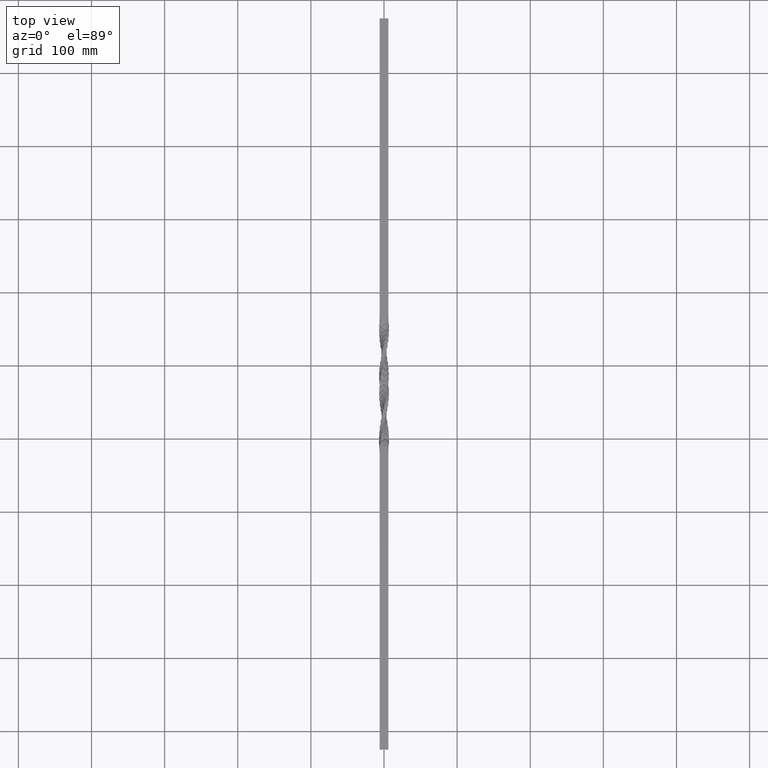
[diagram: clean part render]
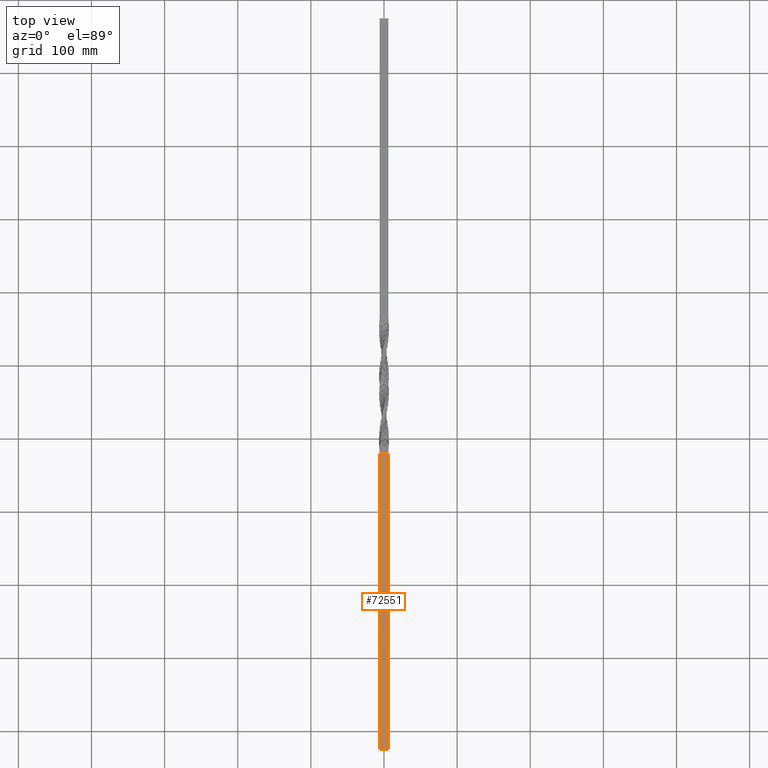
[diagram: same view with one face highlighted and labeled with its STEP entity id]
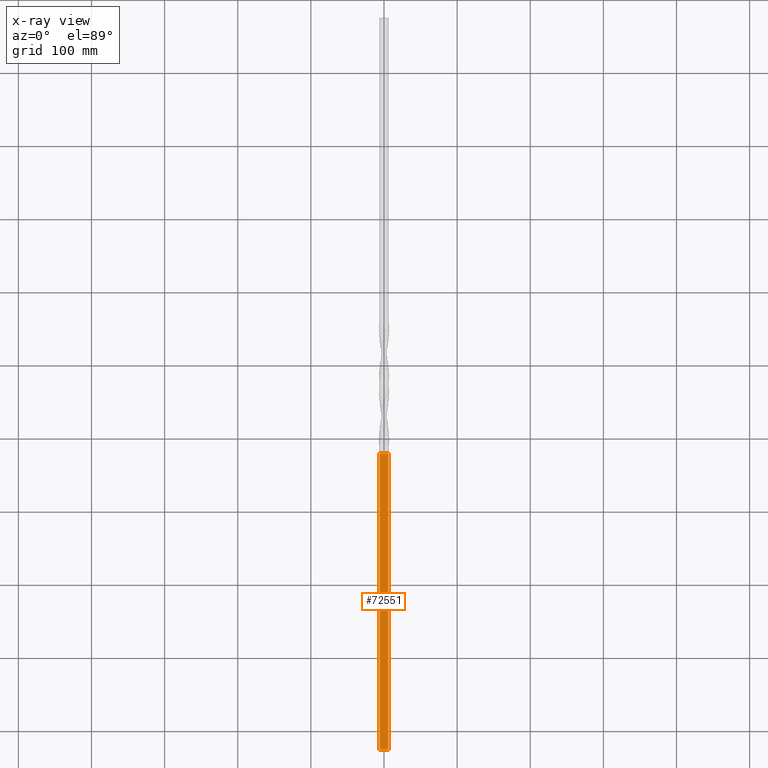
[diagram: x-ray of the same camera — body ghosted, the highlighted face saturated]
A machine part, top view. The second image highlights one B-rep face of the part: STEP entity #72551.
The next image is the same camera in x-ray: the body ghosted, the highlighted face saturated — about 0% of this face is hidden behind the body in this view.
In plain terms, the highlighted planar face has unit normal (0, 0, -1).
Its self-contained STEP definition (entity closure, byte-faithful):
#369 = VERTEX_POINT ( 'NONE', #24973 ) ;
#2434 = CARTESIAN_POINT ( 'NONE',  ( -5.999999999999999112, -425.0000000000000568, 6.000000000000000888 ) ) ;
#4704 = VECTOR ( 'NONE', #49043, 1000.000000000000000 ) ;
#4718 = VERTEX_POINT ( 'NONE', #26714 ) ;
#5309 = CARTESIAN_POINT ( 'NONE',  ( -5.999999999999999112, -425.0000000000000568, 6.000000000000000888 ) ) ;
#6097 = DIRECTION ( 'NONE',  ( -1.000000000000000000, -0.000000000000000000, -1.445602896647339163E-16 ) ) ;
#11058 = EDGE_LOOP ( 'NONE', ( #80606, #22583, #58504, #17174, #70306, #34019 ) ) ;
#11861 = FACE_OUTER_BOUND ( 'NONE', #11058, .T. ) ;
#13582 = VERTEX_POINT ( 'NONE', #61309 ) ;
#14112 = CARTESIAN_POINT ( 'NONE',  ( -5.999999999999999112, -425.0000000000000568, 6.000000000000000888 ) ) ;
#16163 = CARTESIAN_POINT ( 'NONE',  ( 5.999999999999997335, -20.00000000000000000, 5.999999999999999112 ) ) ;
#16790 = CARTESIAN_POINT ( 'NONE',  ( -5.999999999999999112, -425.0000000000000568, 6.000000000000000888 ) ) ;
#17174 = ORIENTED_EDGE ( 'NONE', *, *, #61214, .F. ) ;
#18958 = DIRECTION ( 'NONE',  ( -1.000000000000000000, -0.000000000000000000, -1.445602896647339163E-16 ) ) ;
#20452 = VERTEX_POINT ( 'NONE', #16163 ) ;
#20641 = EDGE_CURVE ( 'NONE', #369, #20452, #52792, .T. ) ;
#22583 = ORIENTED_EDGE ( 'NONE', *, *, #27738, .T. ) ;
#24973 = CARTESIAN_POINT ( 'NONE',  ( 5.999999999999999112, -425.0000000000000568, 6.000000000000000888 ) ) ;
#25524 = DIRECTION ( 'NONE',  ( -0.000000000000000000, 1.000000000000000000, -0.000000000000000000 ) ) ;
#26714 = CARTESIAN_POINT ( 'NONE',  ( -5.416250956112784287, -20.00000000000000000, 5.999999999999997335 ) ) ;
#27738 = EDGE_CURVE ( 'NONE', #82572, #4718, #43166, .T. ) ;
#28538 = VECTOR ( 'NONE', #6097, 1000.000000000000000 ) ;
#32265 = DIRECTION ( 'NONE',  ( -1.000000000000000000, -0.000000000000000000, -1.445602896647339163E-16 ) ) ;
#34019 = ORIENTED_EDGE ( 'NONE', *, *, #20641, .T. ) ;
#43166 = LINE ( 'NONE', #72402, #71499 ) ;
#46848 = AXIS2_PLACEMENT_3D ( 'NONE', #14112, #48421, #74500 ) ;
#46849 = CARTESIAN_POINT ( 'NONE',  ( -6.000000000000002665, -20.00000000000000000, 5.999999999999997335 ) ) ;
#47559 = PLANE ( 'NONE',  #46848 ) ;
#48421 = DIRECTION ( 'NONE',  ( 0.000000000000000000, 0.000000000000000000, -1.000000000000000000 ) ) ;
#49043 = DIRECTION ( 'NONE',  ( -0.000000000000000000, 1.000000000000000000, -0.000000000000000000 ) ) ;
#52792 = LINE ( 'NONE', #79770, #82135 ) ;
#58504 = ORIENTED_EDGE ( 'NONE', *, *, #77271, .T. ) ;
#59066 = LINE ( 'NONE', #85898, #68443 ) ;
#61214 = EDGE_CURVE ( 'NONE', #63276, #13582, #83398, .T. ) ;
#61309 = CARTESIAN_POINT ( 'NONE',  ( -6.000000000000002665, -20.00000000000000000, 5.999999999999997335 ) ) ;
#63276 = VERTEX_POINT ( 'NONE', #5309 ) ;
#64003 = DIRECTION ( 'NONE',  ( -1.000000000000000000, -0.000000000000000000, -0.000000000000000000 ) ) ;
#65358 = VECTOR ( 'NONE', #64003, 1000.000000000000000 ) ;
#68355 = EDGE_CURVE ( 'NONE', #20452, #82572, #59066, .T. ) ;
#68443 = VECTOR ( 'NONE', #18958, 1000.000000000000000 ) ;
#70306 = ORIENTED_EDGE ( 'NONE', *, *, #72274, .F. ) ;
#71499 = VECTOR ( 'NONE', #32265, 1000.000000000000000 ) ;
#72274 = EDGE_CURVE ( 'NONE', #369, #63276, #83247, .T. ) ;
#72402 = CARTESIAN_POINT ( 'NONE',  ( -6.000000000000002665, -20.00000000000000000, 5.999999999999997335 ) ) ;
#72551 = ADVANCED_FACE ( 'NONE', ( #11861 ), #47559, .F. ) ;
#74500 = DIRECTION ( 'NONE',  ( -1.000000000000000000, 0.000000000000000000, -0.000000000000000000 ) ) ;
#77271 = EDGE_CURVE ( 'NONE', #4718, #13582, #84197, .T. ) ;
#79770 = CARTESIAN_POINT ( 'NONE',  ( 5.999999999999999112, -425.0000000000000568, 6.000000000000000888 ) ) ;
#80606 = ORIENTED_EDGE ( 'NONE', *, *, #68355, .T. ) ;
#80885 = CARTESIAN_POINT ( 'NONE',  ( -3.745090829525625775, -20.00000000000000000, 5.999999999999997335 ) ) ;
#82135 = VECTOR ( 'NONE', #25524, 1000.000000000000000 ) ;
#82572 = VERTEX_POINT ( 'NONE', #80885 ) ;
#83247 = LINE ( 'NONE', #16790, #65358 ) ;
#83398 = LINE ( 'NONE', #2434, #4704 ) ;
#84197 = LINE ( 'NONE', #46849, #28538 ) ;
#85898 = CARTESIAN_POINT ( 'NONE',  ( -6.000000000000002665, -20.00000000000000000, 5.999999999999997335 ) ) ;